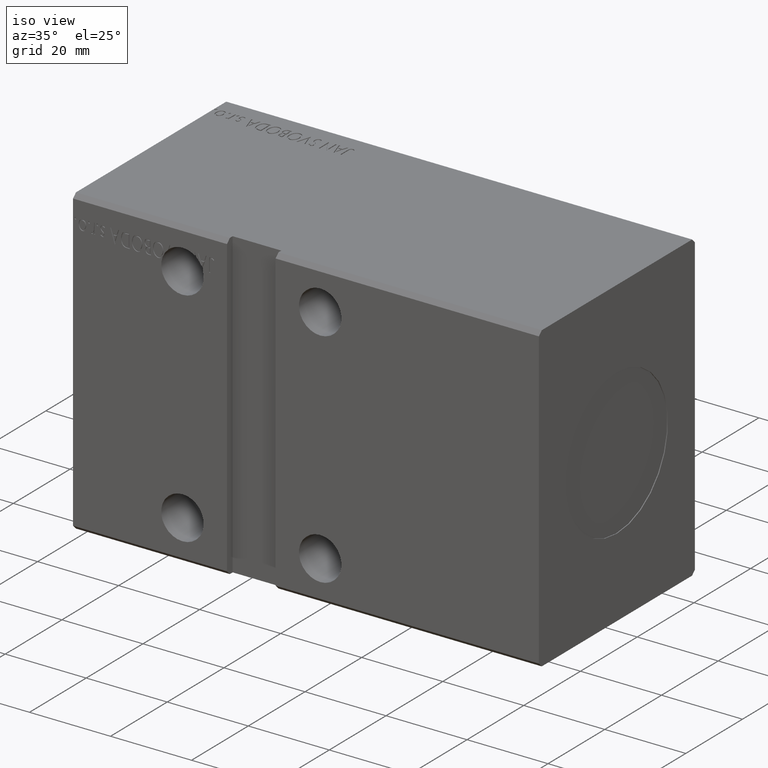
[diagram: clean part render]
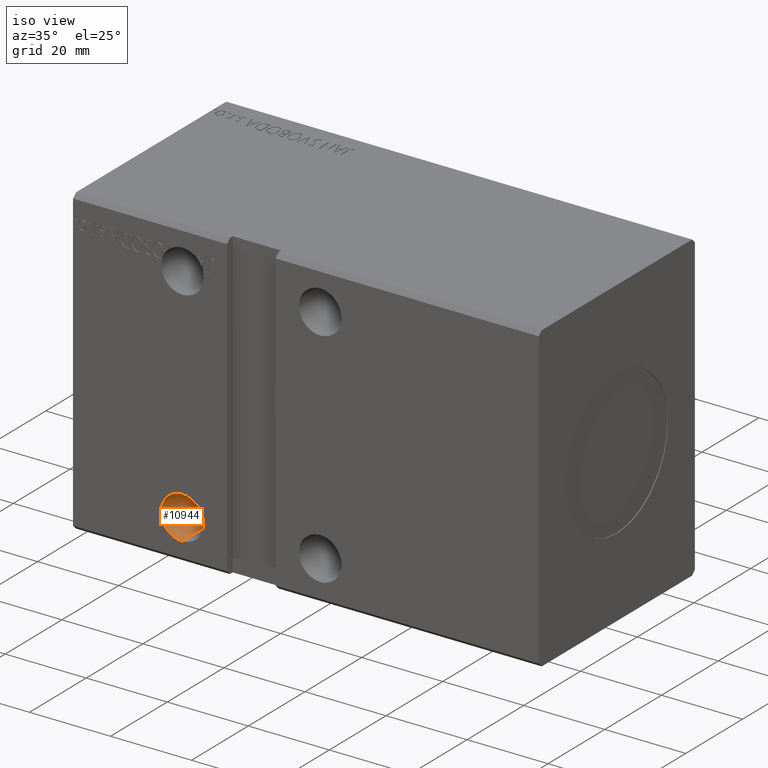
[diagram: same view with one face highlighted and labeled with its STEP entity id]
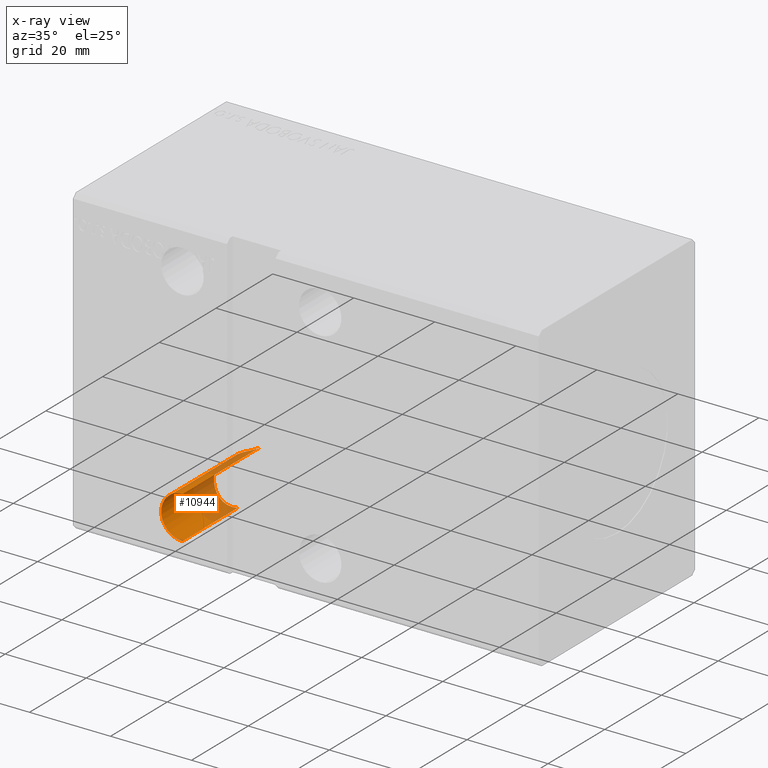
[diagram: x-ray of the same camera — body ghosted, the highlighted face saturated]
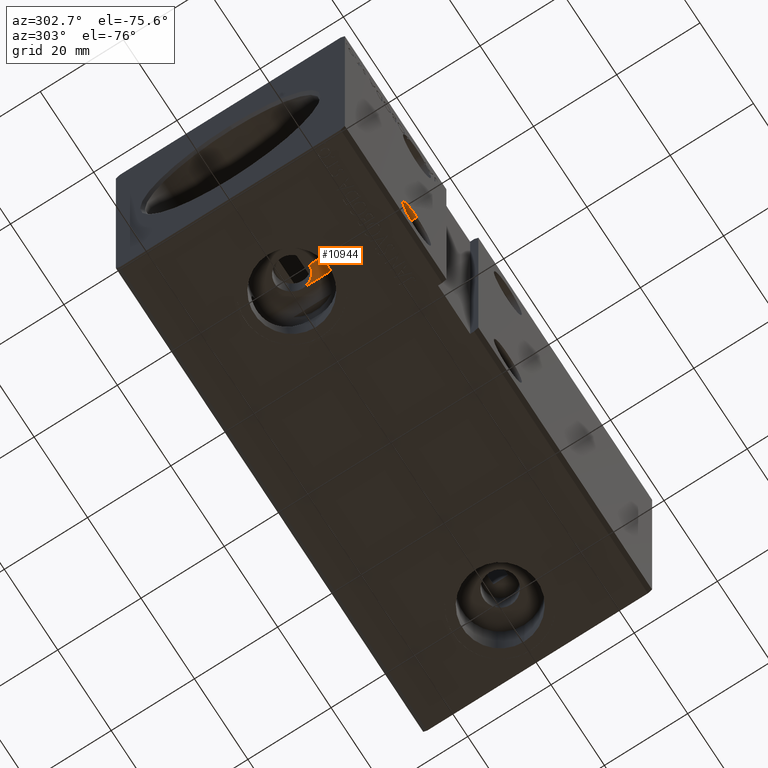
[diagram: same view with one face highlighted and labeled with its STEP entity id]
A machine part, iso view. The second image highlights one B-rep face of the part: STEP entity #10944.
The next image is the same camera in x-ray: the body ghosted, the highlighted face saturated — about 40% of this face is hidden behind the body in this view.
A second angle (auxiliary view) of the same face is appended — the face is thin or edge-on in the first view.
In plain terms, the highlighted cylindrical surface (edge-blend (fillet) strip) has radius 5.25 mm, axis along (-0, -1, -0).
Its self-contained STEP definition (entity closure, byte-faithful):
#38 = CARTESIAN_POINT ( 'NONE',  ( 27.00000000000000711, -2.694655668400267668E-15, -22.25000000000001066 ) ) ;
#63 = ORIENTED_EDGE ( 'NONE', *, *, #31768, .T. ) ;
#187 = CARTESIAN_POINT ( 'NONE',  ( 24.62345976748241227, -8.855542243360087440, -32.18819809803618170 ) ) ;
#643 = CARTESIAN_POINT ( 'NONE',  ( 23.66667275823045102, -3.949948964924149486, -23.43551939807488793 ) ) ;
#788 = CARTESIAN_POINT ( 'NONE',  ( 25.80550959968107705, -8.555239810550213875, -32.61842383839086779 ) ) ;
#3179 = CARTESIAN_POINT ( 'NONE',  ( 22.23082137755478982, -8.967885657624288243, -25.28985837464655972 ) ) ;
#3377 = CARTESIAN_POINT ( 'NONE',  ( 23.09032825795614130, -9.001451643036478600, -23.98632086048321455 ) ) ;
#3578 = CARTESIAN_POINT ( 'NONE',  ( 23.74874548984193723, -8.970939710471037998, -31.63025947165326457 ) ) ;
#3773 = VERTEX_POINT ( 'NONE', #26579 ) ;
#4001 = CARTESIAN_POINT ( 'NONE',  ( 27.00000000000000711, -2.694655668400267668E-15, -22.25000000000001066 ) ) ;
#4402 = CARTESIAN_POINT ( 'NONE',  ( 27.00000000000000355, 27.50000000000003197, -32.75000000000000000 ) ) ;
#4542 = EDGE_CURVE ( 'NONE', #39387, #31923, #38623, .T. ) ;
#5367 = VECTOR ( 'NONE', #10979, 1000.000000000000000 ) ;
#5618 = ORIENTED_EDGE ( 'NONE', *, *, #30699, .F. ) ;
#6228 = CARTESIAN_POINT ( 'NONE',  ( 23.46243547194310608, -3.977599152634948343, -23.61174159613957002 ) ) ;
#6363 = VERTEX_POINT ( 'NONE', #8223 ) ;
#6385 = CARTESIAN_POINT ( 'NONE',  ( 23.27541948670728544, -8.995784796577890319, -23.79999999999998650 ) ) ;
#6586 = CARTESIAN_POINT ( 'NONE',  ( 27.00000000000000711, -8.062257748298547355, -32.75000000000000000 ) ) ;
#6986 = DIRECTION ( 'NONE',  ( -0.000000000000000000, -1.000000000000000000, -5.507058653894626469E-17 ) ) ;
#7331 = AXIS2_PLACEMENT_3D ( 'NONE', #34068, #6986, #27518 ) ;
#8223 = CARTESIAN_POINT ( 'NONE',  ( 27.00000000000000355, -27.50000000000000355, -32.75000000000000000 ) ) ;
#9181 = CARTESIAN_POINT ( 'NONE',  ( 21.88880316543686533, -8.931270881071915468, -26.27284882410880584 ) ) ;
#9381 = CARTESIAN_POINT ( 'NONE',  ( 24.39408681521057431, -8.894117382323472043, -32.06500116610869355 ) ) ;
#9435 = CARTESIAN_POINT ( 'NONE',  ( 26.58087709370445850, -1.802232880305481455, -22.26572885212446806 ) ) ;
#9629 = CARTESIAN_POINT ( 'NONE',  ( 24.30543104851973624, -3.788652718593733315, -22.98718635235770691 ) ) ;
#9777 = CARTESIAN_POINT ( 'NONE',  ( 21.76362356574520263, -8.914677335557517068, -27.04173224659647801 ) ) ;
#9828 = EDGE_CURVE ( 'NONE', #3773, #6363, #38076, .T. ) ;
#10944 = ADVANCED_FACE ( 'NONE', ( #12971 ), #24751, .F. ) ;
#10979 = DIRECTION ( 'NONE',  ( -0.000000000000000000, -1.000000000000000000, -5.507058653894626469E-17 ) ) ;
#10982 = EDGE_CURVE ( 'NONE', #3773, #28810, #30645, .T. ) ;
#11655 = ORIENTED_EDGE ( 'NONE', *, *, #30329, .T. ) ;
#11982 = LINE ( 'NONE', #24153, #18314 ) ;
#12373 = CARTESIAN_POINT ( 'NONE',  ( 22.61114177981006179, -8.992926944251884436, -24.60709789233364120 ) ) ;
#12626 = CARTESIAN_POINT ( 'NONE',  ( 26.78794795121687855, -1.312316438189888412, -22.25325887920218548 ) ) ;
#12971 = FACE_OUTER_BOUND ( 'NONE', #17499, .T. ) ;
#13170 = CARTESIAN_POINT ( 'NONE',  ( 21.74394696409208194, -8.911926248307375786, -27.55961525603168027 ) ) ;
#14326 = CARTESIAN_POINT ( 'NONE',  ( 27.00000000000000355, 27.50000000000003197, -22.25000000000000711 ) ) ;
#15362 = CARTESIAN_POINT ( 'NONE',  ( 22.47192751610906569, -8.985307361087173206, -24.83047751132562198 ) ) ;
#15608 = CARTESIAN_POINT ( 'NONE',  ( 25.60354574374016323, -3.048055681134146155, -22.43543354733324691 ) ) ;
#16154 = CARTESIAN_POINT ( 'NONE',  ( 25.32428380797083989, -8.698316912479713281, -32.48167091944392126 ) ) ;
#17499 = EDGE_LOOP ( 'NONE', ( #11655, #20179, #63, #28194, #38755, #5618 ) ) ;
#18163 = DIRECTION ( 'NONE',  ( -0.000000000000000000, -1.000000000000000000, -5.507058653894626469E-17 ) ) ;
#18314 = VECTOR ( 'NONE', #18163, 1000.000000000000000 ) ;
#18348 = AXIS2_PLACEMENT_3D ( 'NONE', #23697, #32843, #20913 ) ;
#18362 = CARTESIAN_POINT ( 'NONE',  ( 23.35767470268336510, -8.995023507724990708, -31.28987672906810502 ) ) ;
#18561 = CARTESIAN_POINT ( 'NONE',  ( 23.17275245490687752, -8.999940013037029729, -31.10320597505532092 ) ) ;
#18758 = CARTESIAN_POINT ( 'NONE',  ( 25.08761085830052195, -8.757746910300319598, -32.39590774564991449 ) ) ;
#19145 = B_SPLINE_CURVE_WITH_KNOTS ( 'NONE', 3,
 ( #27368, #6228, #643, #30544, #9629, #24986, #36512, #24797, #15608, #24586, #28161, #36315, #9435, #12626, #24384, #36711, #21796, #38 ),
 .UNSPECIFIED., .F., .F.,
 ( 4, 2, 2, 2, 2, 2, 2, 2, 4 ),
 ( 0.009118840472137550862, 0.009912878108013296191, 0.01070691574388903979, 0.01150095337976478338, 0.01229499101564052871, 0.01308902865151627230, 0.01388306628739201590, 0.01467710392326776123, 0.01547114155914350656 ),
 .UNSPECIFIED. ) ;
#20179 = ORIENTED_EDGE ( 'NONE', *, *, #4542, .T. ) ;
#20551 = VECTOR ( 'NONE', #29865, 1000.000000000000000 ) ;
#20913 = DIRECTION ( 'NONE',  ( 0.000000000000000000, 0.000000000000000000, 1.000000000000000000 ) ) ;
#21345 = CARTESIAN_POINT ( 'NONE',  ( 21.75334309185382509, -8.913287995569794120, -27.82178174197619924 ) ) ;
#21553 = CARTESIAN_POINT ( 'NONE',  ( 22.38878130200075844, -8.981646505318773066, -30.06390020045802913 ) ) ;
#21796 = CARTESIAN_POINT ( 'NONE',  ( 26.99999999999999645, -0.2672362124812732165, -22.25000000000001066 ) ) ;
#21952 = CARTESIAN_POINT ( 'NONE',  ( 21.97308215978567603, -8.943657081571185330, -29.10219198176171673 ) ) ;
#23697 = CARTESIAN_POINT ( 'NONE',  ( 27.00000000000000355, -27.50000000000000355, -27.50000000000000711 ) ) ;
#23921 = VERTEX_POINT ( 'NONE', #29095 ) ;
#24153 = CARTESIAN_POINT ( 'NONE',  ( 23.27541948670728544, 27.50000000000003197, -23.79999999999998650 ) ) ;
#24384 = CARTESIAN_POINT ( 'NONE',  ( 26.86799304316954107, -1.053344259374134229, -22.25139476322972953 ) ) ;
#24586 = CARTESIAN_POINT ( 'NONE',  ( 25.98003538671469670, -2.681134642081566266, -22.34640028417518920 ) ) ;
#24751 = CYLINDRICAL_SURFACE ( 'NONE', #7331, 5.249999999999997335 ) ;
#24797 = CARTESIAN_POINT ( 'NONE',  ( 25.39628296599548207, -3.212794693526320522, -22.49582222989424451 ) ) ;
#24941 = CARTESIAN_POINT ( 'NONE',  ( 26.05113081920369922, -8.470952115875567401, -32.66921297644072553 ) ) ;
#24986 = CARTESIAN_POINT ( 'NONE',  ( 24.75071503751043167, -3.604585482684778519, -22.74953623209835385 ) ) ;
#25137 = CARTESIAN_POINT ( 'NONE',  ( 26.76730665820864985, -8.177705975857611165, -32.74999999999999289 ) ) ;
#26579 = CARTESIAN_POINT ( 'NONE',  ( 27.00000000000000711, -8.062257748298547355, -32.75000000000000000 ) ) ;
#27368 = CARTESIAN_POINT ( 'NONE',  ( 23.27541948670728544, -3.990506748063698428, -23.79999999999998650 ) ) ;
#27518 = DIRECTION ( 'NONE',  ( 0.000000000000000000, 0.000000000000000000, -1.000000000000000000 ) ) ;
#28161 = CARTESIAN_POINT ( 'NONE',  ( 26.15059388231446746, -2.479020236034285674, -22.31692247523550776 ) ) ;
#28194 = ORIENTED_EDGE ( 'NONE', *, *, #9828, .F. ) ;
#28311 = CARTESIAN_POINT ( 'NONE',  ( 22.66395700614654984, -9.000118316002684082, -30.50581094479297661 ) ) ;
#28810 = VERTEX_POINT ( 'NONE', #34698 ) ;
#29095 = CARTESIAN_POINT ( 'NONE',  ( 23.27541948670728544, -3.990506748063698428, -23.79999999999998650 ) ) ;
#29865 = DIRECTION ( 'NONE',  ( -0.000000000000000000, -1.000000000000000000, -5.507058653894626469E-17 ) ) ;
#30329 = EDGE_CURVE ( 'NONE', #23921, #39387, #19145, .T. ) ;
#30503 = CARTESIAN_POINT ( 'NONE',  ( 22.12780312306788844, -8.958049892849127005, -25.52727704576142997 ) ) ;
#30544 = CARTESIAN_POINT ( 'NONE',  ( 24.08767559763522925, -3.855322449080073266, -23.12399272857787480 ) ) ;
#30645 = B_SPLINE_CURVE_WITH_KNOTS ( 'NONE', 3,
 ( #6586, #25137, #34272, #24941, #788, #16154, #18758, #187, #9381, #30902, #3578, #18362, #18561, #28311, #21553, #21952, #37062, #21345, #13170, #9777, #36466, #9181, #33473, #30503, #3179, #15362, #12373, #30698, #3377, #6385 ),
 .UNSPECIFIED., .F., .F.,
 ( 4, 2, 2, 2, 2, 2, 2, 2, 2, 2, 2, 2, 2, 2, 4 ),
 ( 0.03390865343673590132, 0.03468730507548344055, 0.03546595671423097978, 0.03624460835297851902, 0.03702325999172605825, 0.03780191163047359748, 0.03858056326922114365, 0.04013786654671622212, 0.04169516982421130058, 0.04247382146295884675, 0.04325247310170639292, 0.04403112474045393215, 0.04480977637920147832, 0.04558842801794902450, 0.04636707965669657067 ),
 .UNSPECIFIED. ) ;
#30698 = CARTESIAN_POINT ( 'NONE',  ( 22.92052522925184022, -9.000979363429035374, -24.18505736455388799 ) ) ;
#30699 = EDGE_CURVE ( 'NONE', #23921, #28810, #11982, .T. ) ;
#30902 = CARTESIAN_POINT ( 'NONE',  ( 23.95604505239460735, -8.951803165657985062, -31.78536549785217247 ) ) ;
#31253 = CARTESIAN_POINT ( 'NONE',  ( 27.00000000000000355, -27.50000000000000355, -22.25000000000001066 ) ) ;
#31768 = EDGE_CURVE ( 'NONE', #31923, #6363, #36790, .T. ) ;
#31923 = VERTEX_POINT ( 'NONE', #31253 ) ;
#32843 = DIRECTION ( 'NONE',  ( 0.000000000000000000, -1.000000000000000000, -4.752667057470705491E-17 ) ) ;
#33473 = CARTESIAN_POINT ( 'NONE',  ( 21.95690363960731162, -8.939761476562997800, -26.01773235832362374 ) ) ;
#34068 = CARTESIAN_POINT ( 'NONE',  ( 27.00000000000000355, 27.50000000000003197, -27.50000000000000355 ) ) ;
#34272 = CARTESIAN_POINT ( 'NONE',  ( 26.53090808061664774, -8.282458400232838969, -32.73460297341043912 ) ) ;
#34698 = CARTESIAN_POINT ( 'NONE',  ( 23.27541948670728544, -8.995784796577890319, -23.79999999999998650 ) ) ;
#36315 = CARTESIAN_POINT ( 'NONE',  ( 26.45306115131340619, -2.036701212066958089, -22.27633832677902959 ) ) ;
#36466 = CARTESIAN_POINT ( 'NONE',  ( 21.79249472639754615, -8.918760506395972953, -26.78437306119603178 ) ) ;
#36512 = CARTESIAN_POINT ( 'NONE',  ( 24.97165712530440018, -3.489525752320416174, -22.65236875756328772 ) ) ;
#36711 = CARTESIAN_POINT ( 'NONE',  ( 26.97348491638868140, -0.5313397500620519187, -22.24980193531282424 ) ) ;
#36790 = CIRCLE ( 'NONE', #18348, 5.249999999999997335 ) ;
#37062 = CARTESIAN_POINT ( 'NONE',  ( 21.84032567695500759, -8.925165590556764172, -28.60184830406890555 ) ) ;
#38076 = LINE ( 'NONE', #4402, #5367 ) ;
#38623 = LINE ( 'NONE', #14326, #20551 ) ;
#38755 = ORIENTED_EDGE ( 'NONE', *, *, #10982, .T. ) ;
#39387 = VERTEX_POINT ( 'NONE', #4001 ) ;